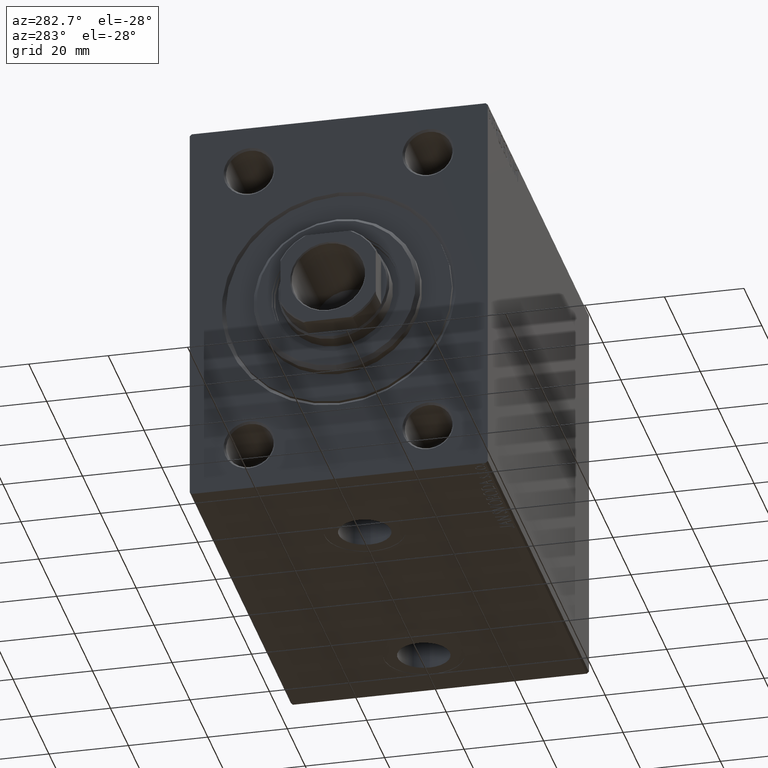
[diagram: clean part render]
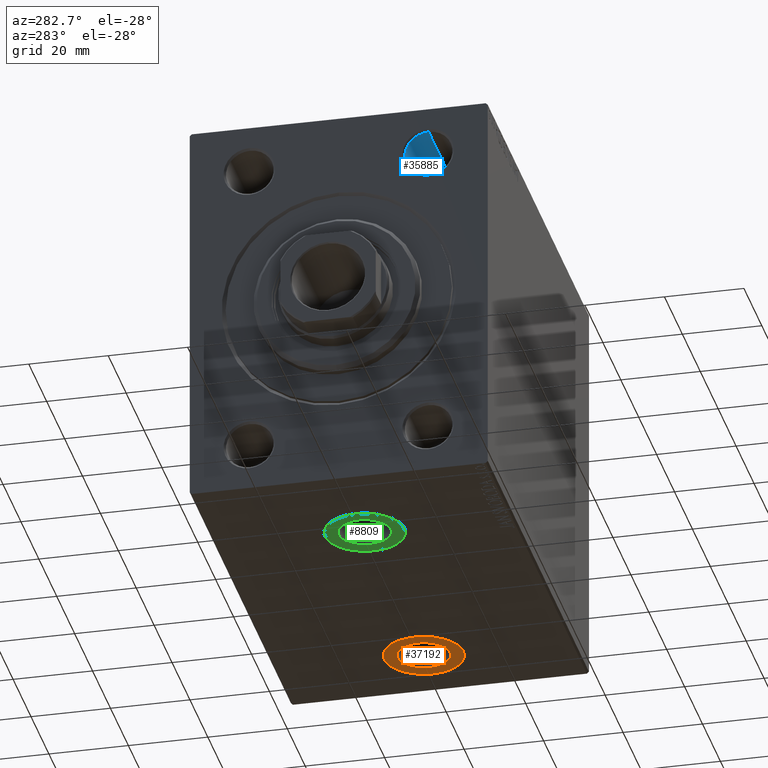
[diagram: same view with three faces highlighted in distinct colors, each labeled with its STEP entity id]
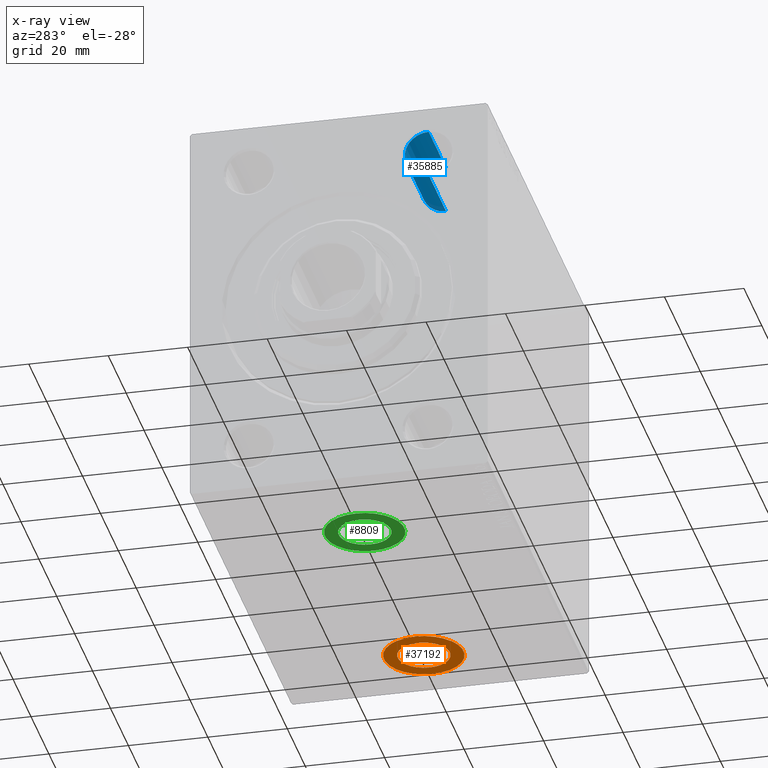
[diagram: x-ray of the same camera — body ghosted, the three highlighted faces saturated]
A machine part, auxiliary view with three faces highlighted in distinct colors.
The next image is the same camera in x-ray (body ghosted, the three faces saturated) — at least one of them is partly hidden behind the body in this view.
Their STEP definitions:

[orange] entity #37192 — the highlighted planar face has unit normal (0, 0, -1).
#476 = CARTESIAN_POINT ( 'NONE',  ( 105.0000000000000000, -1.150285031403717661E-14, -49.89999999999999858 ) ) ;
#1237 = DIRECTION ( 'NONE',  ( 0.000000000000000000, 0.000000000000000000, -1.000000000000000000 ) ) ;
#1932 = CIRCLE ( 'NONE', #6342, 6.580000000000002736 ) ;
#3778 = CARTESIAN_POINT ( 'NONE',  ( 95.00000000000000000, -1.272749711318452810E-14, -49.89999999999999858 ) ) ;
#6342 = AXIS2_PLACEMENT_3D ( 'NONE', #38545, #6875, #20991 ) ;
#6875 = DIRECTION ( 'NONE',  ( 0.000000000000000000, 0.000000000000000000, -1.000000000000000000 ) ) ;
#6880 = CARTESIAN_POINT ( 'NONE',  ( 88.42000000000000171, -1.272749711318452810E-14, -49.89999999999999858 ) ) ;
#7636 = DIRECTION ( 'NONE',  ( -1.000000000000000000, 0.000000000000000000, 0.000000000000000000 ) ) ;
#8091 = DIRECTION ( 'NONE',  ( 0.000000000000000000, 0.000000000000000000, -1.000000000000000000 ) ) ;
#8348 = DIRECTION ( 'NONE',  ( -1.000000000000000000, 0.000000000000000000, 0.000000000000000000 ) ) ;
#9392 = ORIENTED_EDGE ( 'NONE', *, *, #39680, .T. ) ;
#13767 = AXIS2_PLACEMENT_3D ( 'NONE', #40714, #33100, #8348 ) ;
#14227 = CIRCLE ( 'NONE', #42290, 6.580000000000002736 ) ;
#14858 = DIRECTION ( 'NONE',  ( 0.000000000000000000, 0.000000000000000000, -1.000000000000000000 ) ) ;
#15089 = CARTESIAN_POINT ( 'NONE',  ( 95.00000000000000000, -1.272749711318452810E-14, -49.89999999999999858 ) ) ;
#18048 = CARTESIAN_POINT ( 'NONE',  ( 95.00000000000000000, -1.272749711318452810E-14, -49.89999999999999858 ) ) ;
#18105 = VERTEX_POINT ( 'NONE', #19740 ) ;
#18504 = VERTEX_POINT ( 'NONE', #43713 ) ;
#19673 = ORIENTED_EDGE ( 'NONE', *, *, #21563, .F. ) ;
#19740 = CARTESIAN_POINT ( 'NONE',  ( 85.00000000000000000, -1.272749711318452810E-14, -49.89999999999999858 ) ) ;
#20991 = DIRECTION ( 'NONE',  ( -1.000000000000000000, 0.000000000000000000, 0.000000000000000000 ) ) ;
#21563 = EDGE_CURVE ( 'NONE', #26171, #18504, #14227, .T. ) ;
#24466 = ORIENTED_EDGE ( 'NONE', *, *, #34314, .F. ) ;
#26171 = VERTEX_POINT ( 'NONE', #6880 ) ;
#29657 = PLANE ( 'NONE',  #32972 ) ;
#29890 = FACE_BOUND ( 'NONE', #36883, .T. ) ;
#30006 = CIRCLE ( 'NONE', #13767, 9.999999999999994671 ) ;
#31001 = EDGE_CURVE ( 'NONE', #18105, #39948, #32801, .T. ) ;
#31358 = AXIS2_PLACEMENT_3D ( 'NONE', #18048, #8091, #7636 ) ;
#32801 = CIRCLE ( 'NONE', #31358, 9.999999999999994671 ) ;
#32972 = AXIS2_PLACEMENT_3D ( 'NONE', #15089, #1237, #33825 ) ;
#33100 = DIRECTION ( 'NONE',  ( 0.000000000000000000, 0.000000000000000000, -1.000000000000000000 ) ) ;
#33825 = DIRECTION ( 'NONE',  ( -1.000000000000000000, 0.000000000000000000, -0.000000000000000000 ) ) ;
#33842 = ORIENTED_EDGE ( 'NONE', *, *, #31001, .T. ) ;
#34314 = EDGE_CURVE ( 'NONE', #18504, #26171, #1932, .T. ) ;
#35910 = DIRECTION ( 'NONE',  ( -1.000000000000000000, 0.000000000000000000, 0.000000000000000000 ) ) ;
#36883 = EDGE_LOOP ( 'NONE', ( #19673, #24466 ) ) ;
#37192 = ADVANCED_FACE ( 'NONE', ( #29890, #44222 ), #29657, .T. ) ;
#38545 = CARTESIAN_POINT ( 'NONE',  ( 95.00000000000000000, -1.272749711318452810E-14, -49.89999999999999858 ) ) ;
#39680 = EDGE_CURVE ( 'NONE', #39948, #18105, #30006, .T. ) ;
#39948 = VERTEX_POINT ( 'NONE', #476 ) ;
#40714 = CARTESIAN_POINT ( 'NONE',  ( 95.00000000000000000, -1.272749711318452810E-14, -49.89999999999999858 ) ) ;
#42258 = EDGE_LOOP ( 'NONE', ( #33842, #9392 ) ) ;
#42290 = AXIS2_PLACEMENT_3D ( 'NONE', #3778, #14858, #35910 ) ;
#43713 = CARTESIAN_POINT ( 'NONE',  ( 101.5799999999999983, -1.192167951934556905E-14, -49.89999999999999858 ) ) ;
#44222 = FACE_OUTER_BOUND ( 'NONE', #42258, .T. ) ;

[blue] entity #35885 — the highlighted cylindrical surface (edge-blend (fillet) strip) has radius 6 mm, axis along (-1, -0, -0).
#656 = VERTEX_POINT ( 'NONE', #13508 ) ;
#1479 = CARTESIAN_POINT ( 'NONE',  ( 0.4999999999999726885, -22.50000000000000000, 37.99999999999999289 ) ) ;
#2875 = CARTESIAN_POINT ( 'NONE',  ( 20.00000000000000000, -22.50000000000000000, 43.99999999999999289 ) ) ;
#4264 = CIRCLE ( 'NONE', #7201, 5.999999999999998224 ) ;
#4270 = DIRECTION ( 'NONE',  ( 0.000000000000000000, 0.000000000000000000, 1.000000000000000000 ) ) ;
#4489 = DIRECTION ( 'NONE',  ( -1.000000000000000000, -0.000000000000000000, -0.000000000000000000 ) ) ;
#4894 = DIRECTION ( 'NONE',  ( -1.000000000000000000, -0.000000000000000000, -0.000000000000000000 ) ) ;
#5870 = ORIENTED_EDGE ( 'NONE', *, *, #31191, .T. ) ;
#7201 = AXIS2_PLACEMENT_3D ( 'NONE', #1479, #44242, #37541 ) ;
#8257 = LINE ( 'NONE', #11060, #33004 ) ;
#9342 = AXIS2_PLACEMENT_3D ( 'NONE', #18766, #4894, #15525 ) ;
#9940 = VECTOR ( 'NONE', #38133, 1000.000000000000000 ) ;
#11060 = CARTESIAN_POINT ( 'NONE',  ( 0.000000000000000000, -22.50000000000000000, 31.99999999999999289 ) ) ;
#11418 = VERTEX_POINT ( 'NONE', #20751 ) ;
#13508 = CARTESIAN_POINT ( 'NONE',  ( 20.00000000000000000, -22.50000000000000000, 31.99999999999999289 ) ) ;
#15525 = DIRECTION ( 'NONE',  ( 0.000000000000000000, 0.000000000000000000, 1.000000000000000000 ) ) ;
#16314 = VERTEX_POINT ( 'NONE', #2875 ) ;
#17091 = CARTESIAN_POINT ( 'NONE',  ( 0.000000000000000000, -22.50000000000000000, 43.99999999999999289 ) ) ;
#17317 = LINE ( 'NONE', #17091, #9940 ) ;
#18135 = EDGE_CURVE ( 'NONE', #11418, #30435, #4264, .T. ) ;
#18766 = CARTESIAN_POINT ( 'NONE',  ( 0.000000000000000000, -22.50000000000000000, 37.99999999999999289 ) ) ;
#19056 = CARTESIAN_POINT ( 'NONE',  ( 20.00000000000000000, -22.50000000000000000, 37.99999999999999289 ) ) ;
#19782 = ORIENTED_EDGE ( 'NONE', *, *, #36674, .F. ) ;
#20751 = CARTESIAN_POINT ( 'NONE',  ( 0.4999999999999726885, -22.50000000000000000, 43.99999999999999289 ) ) ;
#24996 = ORIENTED_EDGE ( 'NONE', *, *, #18135, .T. ) ;
#25844 = ORIENTED_EDGE ( 'NONE', *, *, #35485, .F. ) ;
#30435 = VERTEX_POINT ( 'NONE', #37701 ) ;
#31191 = EDGE_CURVE ( 'NONE', #16314, #11418, #17317, .T. ) ;
#32310 = EDGE_LOOP ( 'NONE', ( #19782, #25844, #5870, #24996 ) ) ;
#32543 = DIRECTION ( 'NONE',  ( -1.000000000000000000, -0.000000000000000000, -0.000000000000000000 ) ) ;
#33004 = VECTOR ( 'NONE', #32543, 1000.000000000000000 ) ;
#35485 = EDGE_CURVE ( 'NONE', #16314, #656, #35913, .T. ) ;
#35885 = ADVANCED_FACE ( 'NONE', ( #36808 ), #43500, .F. ) ;
#35913 = CIRCLE ( 'NONE', #40321, 5.999999999999998224 ) ;
#36674 = EDGE_CURVE ( 'NONE', #656, #30435, #8257, .T. ) ;
#36808 = FACE_OUTER_BOUND ( 'NONE', #32310, .T. ) ;
#37541 = DIRECTION ( 'NONE',  ( 0.000000000000000000, 0.000000000000000000, -1.000000000000000000 ) ) ;
#37701 = CARTESIAN_POINT ( 'NONE',  ( 0.4999999999999726885, -22.50000000000000000, 31.99999999999999289 ) ) ;
#38133 = DIRECTION ( 'NONE',  ( -1.000000000000000000, -0.000000000000000000, -0.000000000000000000 ) ) ;
#40321 = AXIS2_PLACEMENT_3D ( 'NONE', #19056, #4489, #4270 ) ;
#43500 = CYLINDRICAL_SURFACE ( 'NONE', #9342, 5.999999999999998224 ) ;
#44242 = DIRECTION ( 'NONE',  ( -1.000000000000000000, 0.000000000000000000, 0.000000000000000000 ) ) ;

[green] entity #8809 — the highlighted planar face has unit normal (0, 0, -1).
#337 = EDGE_CURVE ( 'NONE', #31413, #2624, #9015, .T. ) ;
#2624 = VERTEX_POINT ( 'NONE', #9837 ) ;
#3117 = CIRCLE ( 'NONE', #16409, 9.999999999999998224 ) ;
#3411 = FACE_OUTER_BOUND ( 'NONE', #44552, .T. ) ;
#4632 = DIRECTION ( 'NONE',  ( -1.000000000000000000, 0.000000000000000000, 0.000000000000000000 ) ) ;
#4717 = AXIS2_PLACEMENT_3D ( 'NONE', #25450, #36306, #4632 ) ;
#4861 = EDGE_CURVE ( 'NONE', #39252, #17704, #45355, .T. ) ;
#5555 = CARTESIAN_POINT ( 'NONE',  ( 29.00000000000000000, -3.767935990684166618E-15, -49.89999999999999858 ) ) ;
#7491 = EDGE_CURVE ( 'NONE', #17704, #39252, #33608, .T. ) ;
#8489 = CARTESIAN_POINT ( 'NONE',  ( 39.00000000000000000, -2.543289191536813953E-15, -49.89999999999999858 ) ) ;
#8809 = ADVANCED_FACE ( 'NONE', ( #17956, #3411 ), #38542, .T. ) ;
#9015 = CIRCLE ( 'NONE', #23817, 9.999999999999998224 ) ;
#9837 = CARTESIAN_POINT ( 'NONE',  ( 19.00000000000000355, -3.767935990684166618E-15, -49.89999999999999858 ) ) ;
#10306 = EDGE_LOOP ( 'NONE', ( #25157, #15673 ) ) ;
#11081 = CARTESIAN_POINT ( 'NONE',  ( 35.57999999999999829, -2.962118396845207576E-15, -49.89999999999999858 ) ) ;
#13675 = CARTESIAN_POINT ( 'NONE',  ( 29.00000000000000000, -3.767935990684166618E-15, -49.89999999999999858 ) ) ;
#15673 = ORIENTED_EDGE ( 'NONE', *, *, #7491, .F. ) ;
#16409 = AXIS2_PLACEMENT_3D ( 'NONE', #26134, #43474, #29832 ) ;
#17515 = DIRECTION ( 'NONE',  ( -1.000000000000000000, 0.000000000000000000, -0.000000000000000000 ) ) ;
#17704 = VERTEX_POINT ( 'NONE', #11081 ) ;
#17956 = FACE_BOUND ( 'NONE', #10306, .T. ) ;
#19938 = DIRECTION ( 'NONE',  ( -1.000000000000000000, 0.000000000000000000, 0.000000000000000000 ) ) ;
#21112 = AXIS2_PLACEMENT_3D ( 'NONE', #24915, #32058, #17515 ) ;
#23817 = AXIS2_PLACEMENT_3D ( 'NONE', #13675, #27776, #19938 ) ;
#24915 = CARTESIAN_POINT ( 'NONE',  ( 0.000000000000000000, 0.000000000000000000, -49.89999999999999858 ) ) ;
#25103 = EDGE_CURVE ( 'NONE', #2624, #31413, #3117, .T. ) ;
#25157 = ORIENTED_EDGE ( 'NONE', *, *, #4861, .F. ) ;
#25450 = CARTESIAN_POINT ( 'NONE',  ( 29.00000000000000000, -3.767935990684166618E-15, -49.89999999999999858 ) ) ;
#26134 = CARTESIAN_POINT ( 'NONE',  ( 29.00000000000000000, -3.767935990684166618E-15, -49.89999999999999858 ) ) ;
#27776 = DIRECTION ( 'NONE',  ( 0.000000000000000000, 0.000000000000000000, -1.000000000000000000 ) ) ;
#28432 = CARTESIAN_POINT ( 'NONE',  ( 22.41999999999999815, -3.767935990684166618E-15, -49.89999999999999858 ) ) ;
#29832 = DIRECTION ( 'NONE',  ( -1.000000000000000000, 0.000000000000000000, 0.000000000000000000 ) ) ;
#31413 = VERTEX_POINT ( 'NONE', #8489 ) ;
#31578 = ORIENTED_EDGE ( 'NONE', *, *, #337, .T. ) ;
#32058 = DIRECTION ( 'NONE',  ( 0.000000000000000000, 0.000000000000000000, -1.000000000000000000 ) ) ;
#33608 = CIRCLE ( 'NONE', #39507, 6.580000000000002736 ) ;
#34679 = ORIENTED_EDGE ( 'NONE', *, *, #25103, .T. ) ;
#36306 = DIRECTION ( 'NONE',  ( 0.000000000000000000, 0.000000000000000000, -1.000000000000000000 ) ) ;
#38542 = PLANE ( 'NONE',  #21112 ) ;
#39252 = VERTEX_POINT ( 'NONE', #28432 ) ;
#39507 = AXIS2_PLACEMENT_3D ( 'NONE', #5555, #40235, #43702 ) ;
#40235 = DIRECTION ( 'NONE',  ( 0.000000000000000000, 0.000000000000000000, -1.000000000000000000 ) ) ;
#43474 = DIRECTION ( 'NONE',  ( 0.000000000000000000, 0.000000000000000000, -1.000000000000000000 ) ) ;
#43702 = DIRECTION ( 'NONE',  ( -1.000000000000000000, 0.000000000000000000, 0.000000000000000000 ) ) ;
#44552 = EDGE_LOOP ( 'NONE', ( #34679, #31578 ) ) ;
#45355 = CIRCLE ( 'NONE', #4717, 6.580000000000002736 ) ;